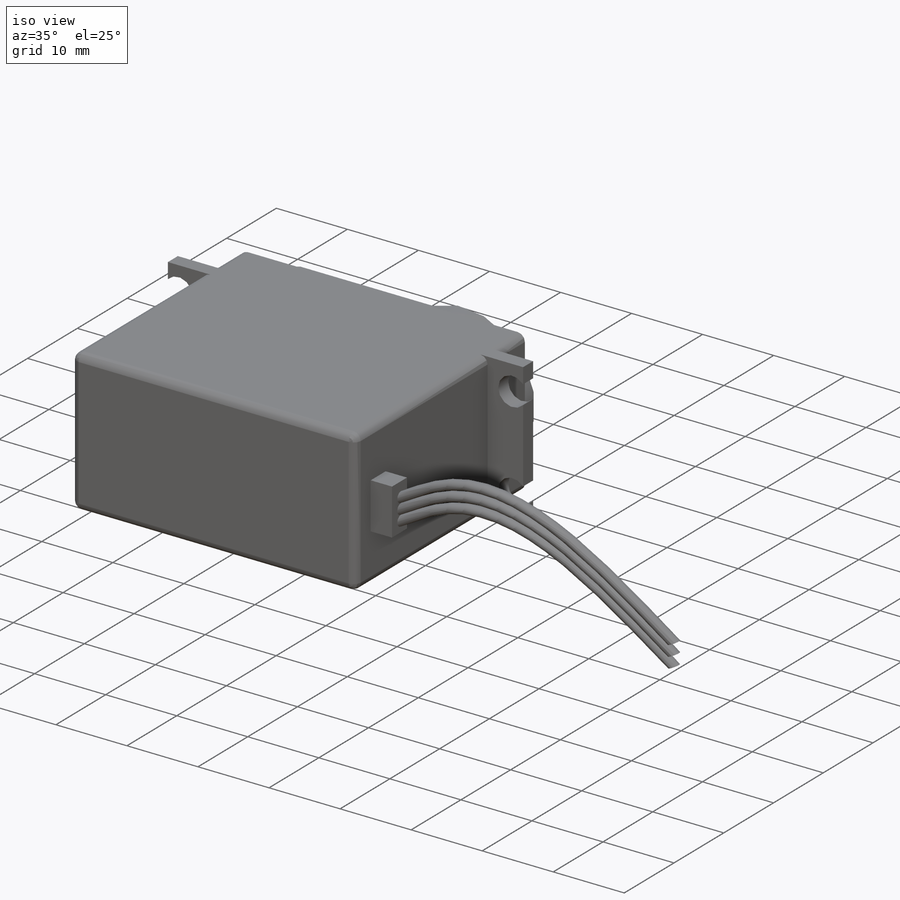
[diagram: iso view]
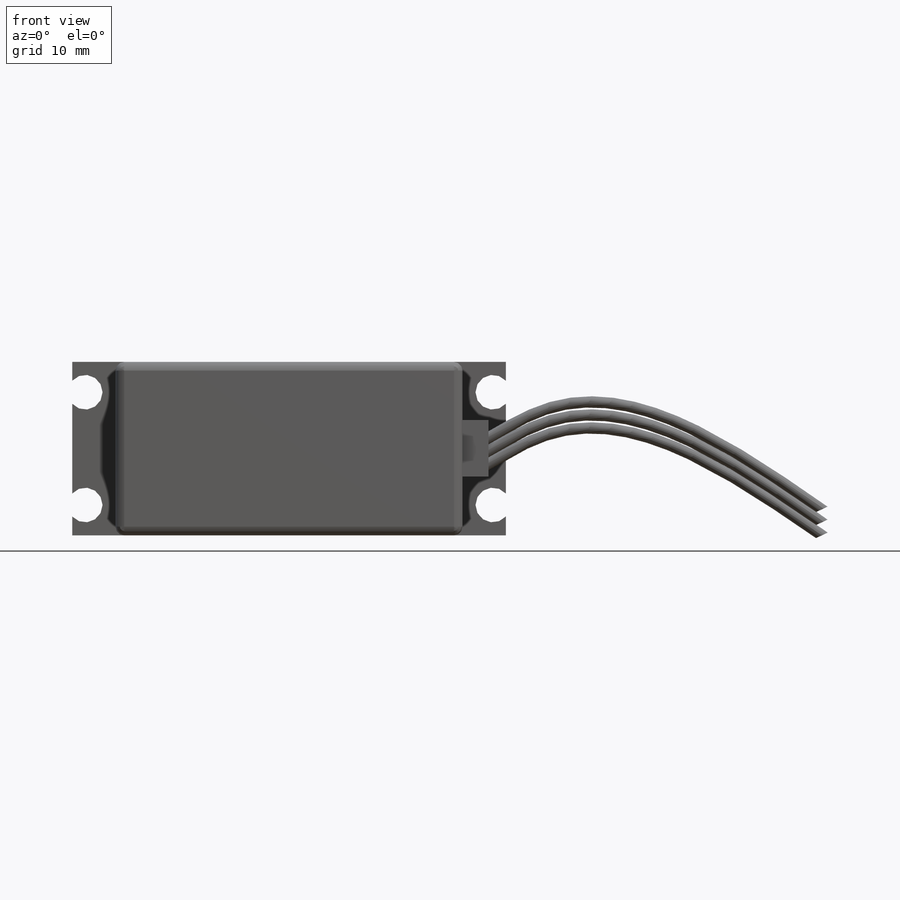
[diagram: front view]
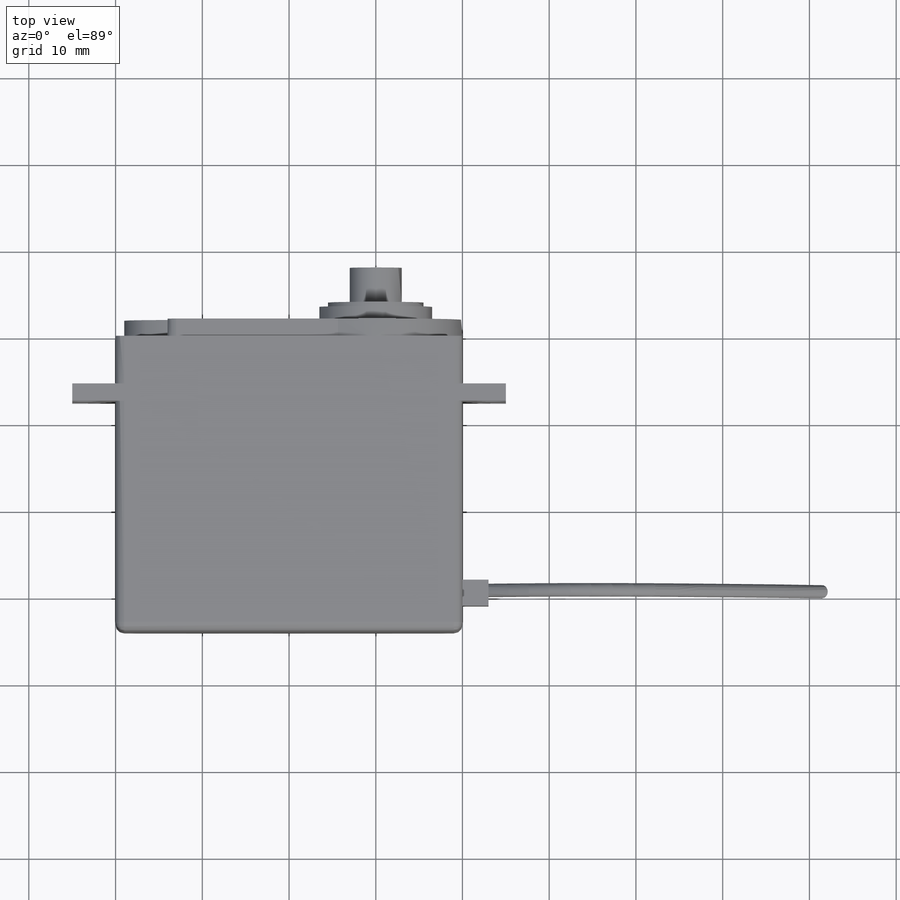
[diagram: top view]
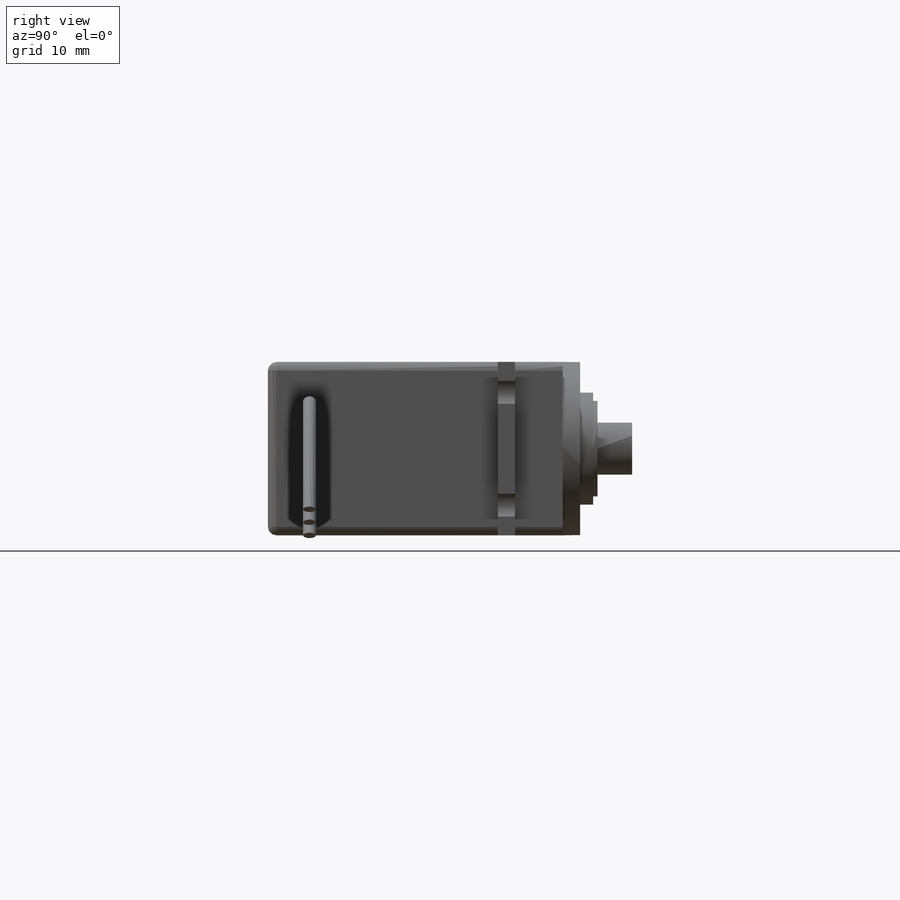
[diagram: right view]
SOLIDWORKS PART (.sldprt)
format: sldprt  version: not decoded by parser v0  size: 354,304 bytes
history: native  units: mm
features: sketch x11, extrude x8, plane x6, fillet x3, material x1, cut_extrude x1, sweep x1, pattern_linear x1 (+13 scaffold rows collapsed)
feature tree (45):
  scaffold x13  (default folders/planes/origin — collapsed)
  material  "Matériau <non spécifié>"
  plane  "Plan de face"
  plane  "Plan de dessus"
  plane  "Plan de droite"
  sketch  "Esquisse1"  dims[D1=40.0mm D2=20.0mm]
  extrude  "Extrusion1"  Depth=34mm
  fillet  "Congé1"  Radius=1mm
  plane  "Plan1"  Offset=5.5mm
  sketch  "Esquisse2"  dims[D4=4.0mm D5=4.0mm D1=25.0mm D2=3.5mm D3=3.5mm D6=3.5mm D7=3.5mm]
  extrude  "Extrusion2"  Depth=2mm
  fillet  "Congé2"  Radius=1mm
  sketch  "Esquisse3"  dims[D1=20.0mm D2=10.0mm D3=10.0mm D4=6.0mm D5=1.0mm D6=1.0mm]
  extrude  "Extrusion3"  Depth=2mm
  fillet  "Congé3"  Radius=1mm
  sketch  "Esquisse4"  dims[D1=13.0mm]
  extrude  "Extrusion4"  Depth=1.5mm
  sketch  "Esquisse6"  dims[D1=11.0mm]
  extrude  "Extrusion5"  Depth=0.5mm
  sketch  "Esquisse7"  dims[D1=6.0mm]
  extrude  "Extrusion6"  Depth=4mm
  sketch  "Esquisse9"  dims[D1=2.0mm]
  cut_extrude  "Extrusion7"  Depth=10mm
  sketch  "Esquisse10"  dims[D1=10.0mm]
  extrude  "Extrusion8"  Depth=1.9mm
  plane  "Plan2"  Offset=3mm
  sketch  "Esquisse11"  dims[D1=6.5mm D2=3.0mm]
  extrude  "Extrusion9"  Depth=3mm
  sketch  "Esquisse12"  dims[D1=1.5mm]
  plane  "Plan3"
  sketch  "Esquisse13"
  sweep  "Balayage1"
  pattern_linear  "Répétition linéaire1"  Count1=3 Count2=1 Spacing1=1.5mm Spacing2=10mm
decode coverage: 23 of 25 modeling features carry decoded parameters
note: suppression state not decoded; provenance and decode notes live in map.json
